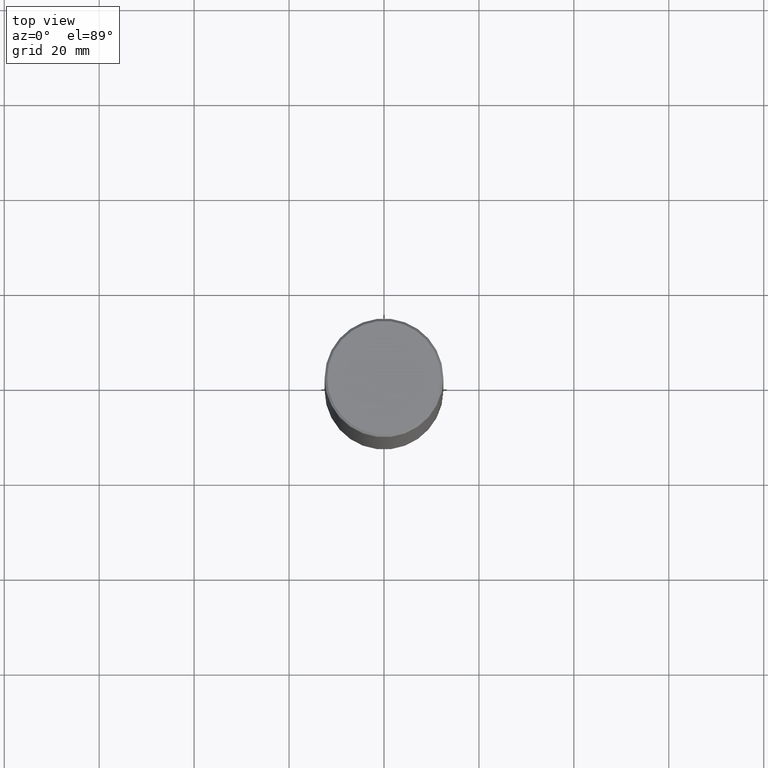
[diagram: clean part render]
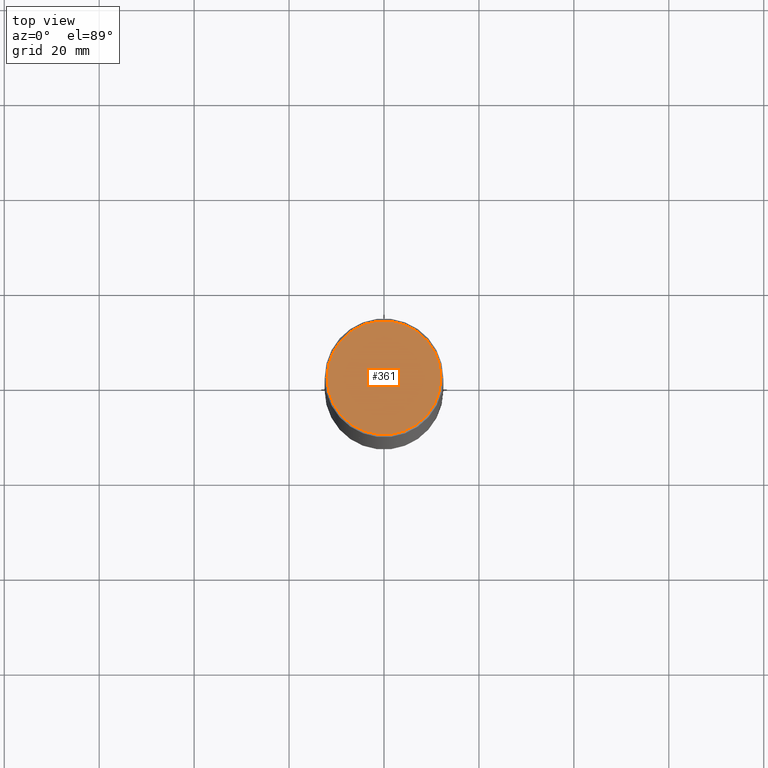
[diagram: same view with one face highlighted and labeled with its STEP entity id]
A machine part, top view. The second image highlights one B-rep face of the part: STEP entity #361.
In plain terms, the highlighted planar face has unit normal (0, -0, -1).
Its self-contained STEP definition (entity closure, byte-faithful):
#30 = VERTEX_POINT ( 'NONE', #144 ) ;
#53 = CARTESIAN_POINT ( 'NONE',  ( 0.4721499999999996255, -3.342703923013973396E-15, 8.537024980224040028E-18 ) ) ;
#75 = FACE_OUTER_BOUND ( 'NONE', #184, .T. ) ;
#78 = CARTESIAN_POINT ( 'NONE',  ( -2.087702828670439639E-46, 2.980686340760894400E-32, 8.537024980200822558E-18 ) ) ;
#80 = DIRECTION ( 'NONE',  ( -2.445468806185136597E-29, 3.491481338843145583E-15, 1.000000000000000000 ) ) ;
#104 = DIRECTION ( 'NONE',  ( -1.000000000000000000, 6.982962677686265922E-15, -4.876176775795935793E-29 ) ) ;
#142 = AXIS2_PLACEMENT_3D ( 'NONE', #247, #80, #356 ) ;
#144 = CARTESIAN_POINT ( 'NONE',  ( -0.4721499999999996255, 3.331920641657999252E-15, 8.537024980177643606E-18 ) ) ;
#183 = CARTESIAN_POINT ( 'NONE',  ( 3.297005828269567997E-15, 0.4721499999999996255, -1.644234401644689488E-15 ) ) ;
#184 = EDGE_LOOP ( 'NONE', ( #364, #226 ) ) ;
#185 = PLANE ( 'NONE',  #292 ) ;
#191 = AXIS2_PLACEMENT_3D ( 'NONE', #78, #352, #345 ) ;
#208 = DIRECTION ( 'NONE',  ( 2.438088387897960049E-29, -3.491481338843145188E-15, -1.000000000000000000 ) ) ;
#210 = CIRCLE ( 'NONE', #142, 0.4721499999999996255 ) ;
#224 = EDGE_CURVE ( 'NONE', #300, #30, #309, .T. ) ;
#226 = ORIENTED_EDGE ( 'NONE', *, *, #224, .T. ) ;
#247 = CARTESIAN_POINT ( 'NONE',  ( -2.087702828670439639E-46, 2.980686340760894400E-32, 8.537024980200822558E-18 ) ) ;
#266 = EDGE_CURVE ( 'NONE', #30, #300, #210, .T. ) ;
#292 = AXIS2_PLACEMENT_3D ( 'NONE', #183, #208, #104 ) ;
#300 = VERTEX_POINT ( 'NONE', #53 ) ;
#309 = CIRCLE ( 'NONE', #191, 0.4721499999999996255 ) ;
#345 = DIRECTION ( 'NONE',  ( 1.000000000000000000, -6.982962677686265922E-15, 4.876006802227162976E-29 ) ) ;
#352 = DIRECTION ( 'NONE',  ( -2.445468806185136597E-29, 3.491481338843145583E-15, 1.000000000000000000 ) ) ;
#356 = DIRECTION ( 'NONE',  ( 1.000000000000000000, -6.982962677686265922E-15, 4.876006802227162976E-29 ) ) ;
#361 = ADVANCED_FACE ( 'NONE', ( #75 ), #185, .F. ) ;
#364 = ORIENTED_EDGE ( 'NONE', *, *, #266, .T. ) ;